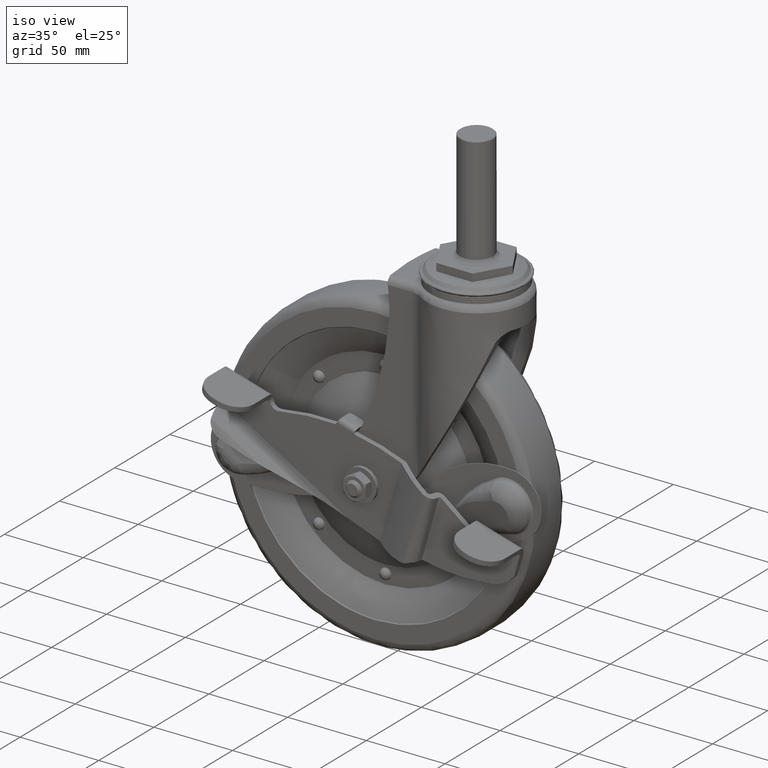
[diagram: clean part render]
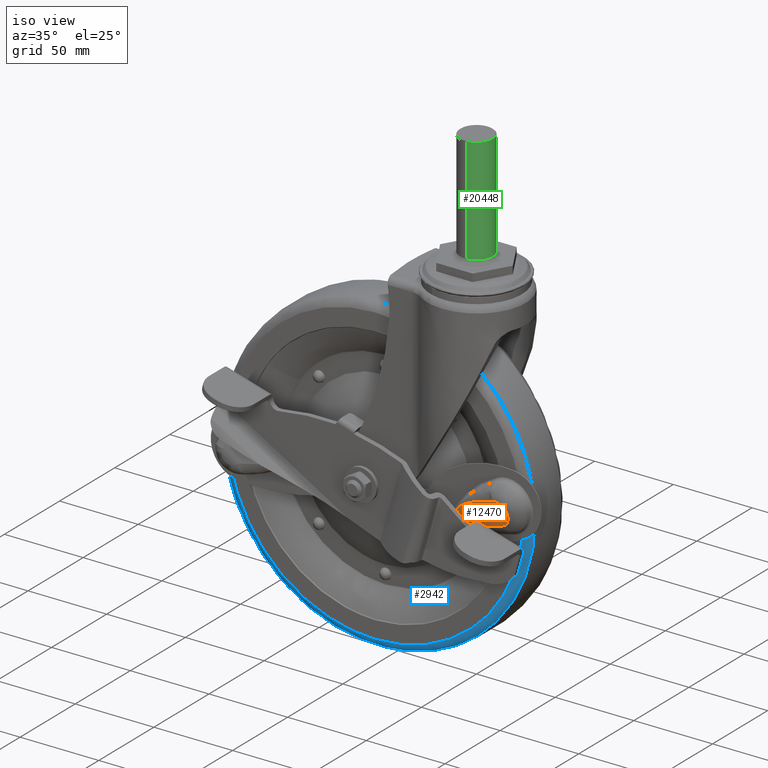
[diagram: same view with three faces highlighted in distinct colors, each labeled with its STEP entity id]
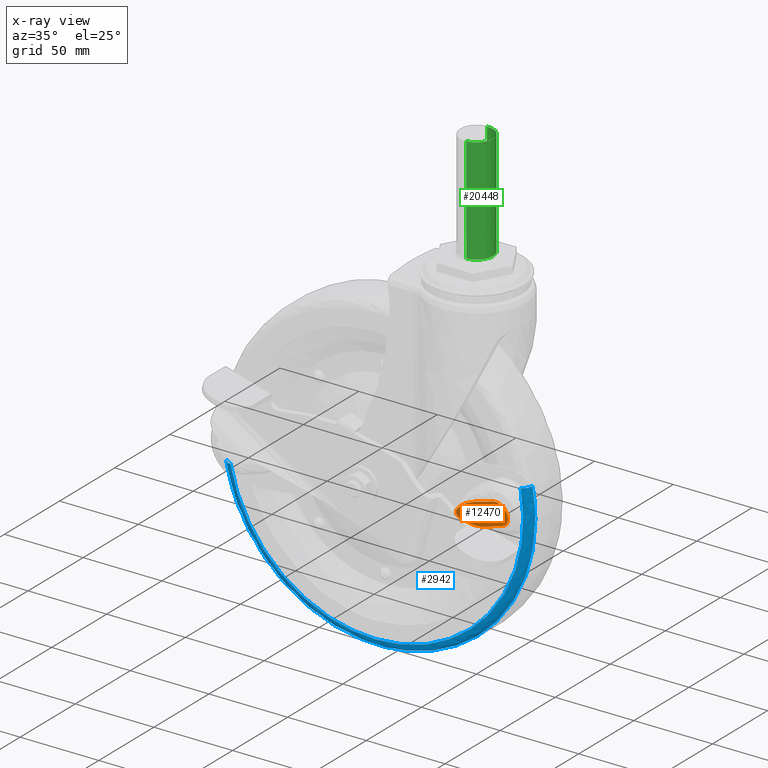
[diagram: x-ray of the same camera — body ghosted, the three highlighted faces saturated]
A machine part, iso view with three faces highlighted in distinct colors.
The next image is the same camera in x-ray (body ghosted, the three faces saturated) — at least one of them is partly hidden behind the body in this view.
Their STEP definitions:

[orange] entity #12470 — the highlighted face is a freeform B-spline surface patch.
#10917=CARTESIAN_POINT('',(2.353505339647175,-21.737326470345302,-132.923790587767600));
#10918=VERTEX_POINT('',#10917);
#10951=CARTESIAN_POINT('',(1.800020573842940,-21.323748464359301,-134.626910777066800));
#10952=VERTEX_POINT('',#10951);
#10966=CARTESIAN_POINT('',(2.353505339647502,-21.737326470345320,-132.923790587767800));
#10967=CARTESIAN_POINT('',(1.777110833418214,-21.512069273756961,-133.678563008669700));
#10968=CARTESIAN_POINT('',(1.800020573842931,-21.323748464359291,-134.626910777066800));
#10976=(BOUNDED_CURVE()B_SPLINE_CURVE(2,(#10966,#10967,#10968),.UNSPECIFIED.,.F.,.U.)CURVE()GEOMETRIC_REPRESENTATION_ITEM()QUASI_UNIFORM_CURVE()RATIONAL_B_SPLINE_CURVE((1.0,0.943017260932655,1.0))REPRESENTATION_ITEM(''));
#10977=EDGE_CURVE('',#10918,#10952,#10976,.T.);
#11062=CARTESIAN_POINT('',(35.307645646096802,-26.189074081966051,-131.562855566195400));
#11063=VERTEX_POINT('',#11062);
#11073=CARTESIAN_POINT('',(32.549695681099898,-25.603090698592801,-132.735144879743390));
#11074=VERTEX_POINT('',#11073);
#11075=CARTESIAN_POINT('',(32.549695681099898,-25.603090698592801,-132.735144879743390));
#11076=CARTESIAN_POINT('',(35.307645646096560,-26.189074081965980,-131.562855566195790));
#11077=QUASI_UNIFORM_CURVE('',1,(#11075,#11076),.UNSPECIFIED.,.F.,.U.);
#11078=EDGE_CURVE('',#11074,#11063,#11077,.T.);
#11215=CARTESIAN_POINT('',(29.993801430335900,-28.184990144374851,-118.323873911160400));
#11216=VERTEX_POINT('',#11215);
#11261=CARTESIAN_POINT('',(29.993801430335900,-28.184990144374851,-118.323873911160400));
#11262=CARTESIAN_POINT('',(29.070042899657469,-27.993508690238549,-118.692769332053900));
#11263=CARTESIAN_POINT('',(27.725378553939461,-27.724126109452900,-119.183398091574110));
#11264=CARTESIAN_POINT('',(26.163446123107331,-27.419037355042100,-119.714519123572800));
#11265=CARTESIAN_POINT('',(25.334774039476589,-27.259314299547249,-119.985690593347100));
#11266=CARTESIAN_POINT('',(24.674608185453469,-27.131618406447920,-120.203960881816500));
#11267=CARTESIAN_POINT('',(23.973824641162281,-26.996742921145131,-120.432302669676700));
#11268=CARTESIAN_POINT('',(22.987362507519681,-26.806436460053661,-120.755952022987700));
#11269=CARTESIAN_POINT('',(22.246433802949710,-26.664174828143221,-120.995686740143700));
#11270=CARTESIAN_POINT('',(21.004777948922790,-26.423894202676369,-121.406745960633500));
#11271=CARTESIAN_POINT('',(19.272570109305502,-26.087426462894690,-121.986441446702600));
#11272=CARTESIAN_POINT('',(17.404254028953630,-25.711637303188319,-122.675579894149490));
#11273=CARTESIAN_POINT('',(16.212098613015051,-25.463895757447968,-123.154758958069100));
#11274=CARTESIAN_POINT('',(15.905859484682869,-25.399496531052691,-123.281617587659000));
#11275=CARTESIAN_POINT('',(15.446217803720860,-25.302914525475028,-123.471644144722900));
#11276=CARTESIAN_POINT('',(14.989677714426220,-25.205370949923928,-123.668389275463400));
#11277=CARTESIAN_POINT('',(14.535627505775080,-25.107078890102368,-123.870411662509400));
#11278=CARTESIAN_POINT('',(14.309888828472760,-25.057584872955609,-123.973957358158300));
#11279=CARTESIAN_POINT('',(14.083488614994099,-25.008259308240930,-124.076251764702500));
#11280=CARTESIAN_POINT('',(12.882667011481731,-24.743390481785401,-124.634922668483600));
#11281=CARTESIAN_POINT('',(10.455210008617399,-24.183217718710239,-125.886974346751700));
#11282=CARTESIAN_POINT('',(7.276965910845660,-23.359095898312450,-127.976051595942910));
#11283=CARTESIAN_POINT('',(4.473892941191450,-22.513245941483021,-130.408738818105890));
#11284=CARTESIAN_POINT('',(3.001590331967736,-21.990630611487830,-132.074992579321900));
#11285=CARTESIAN_POINT('',(2.353505339647175,-21.737326470345302,-132.923790587767600));
#11286=B_SPLINE_CURVE_WITH_KNOTS('',3,(#11261,#11262,#11263,#11264,#11265,#11266,#11267,#11268,#11269,#11270,#11271,#11272,#11273,#11274,#11275,#11276,#11277,#11278,#11279,#11280,#11281,#11282,#11283,#11284,#11285),.UNSPECIFIED.,.F.,.U.,(4,1,1,1,1,1,1,2,1,1,1,1,1,1,1,1,1,1,1,1,1,4),(-0.000158164244176,3.038506764239994,4.368517416284625,5.033127550407869,5.697737684531134,6.489369001846498,7.281000319161898,8.864262953792672,11.270511581378010,14.436163284651199,14.942601028332170,15.195900898573990,15.449200768815800,16.462607470681188,16.715651151045360,16.968983857335260,17.222316563625139,17.475485973941581,21.021110423520781,25.580121437032020,29.125694933040570,32.418070639385988),.UNSPECIFIED.);
#11287=EDGE_CURVE('',#11216,#10918,#11286,.T.);
#11568=CARTESIAN_POINT('',(35.307645646096802,-26.189074081966051,-131.562855566195400));
#11569=CARTESIAN_POINT('',(36.165798584583086,-26.368828696782920,-131.210874203126310));
#11570=CARTESIAN_POINT('',(37.535799407327573,-26.725782889462380,-130.301876608945490));
#11571=CARTESIAN_POINT('',(38.869225140643877,-27.248713941813460,-128.546751536976390));
#11572=CARTESIAN_POINT('',(39.653936731333573,-27.737346855408070,-126.616770851040500));
#11573=CARTESIAN_POINT('',(39.836910759392993,-28.136453586159561,-124.752495372559810));
#11574=CARTESIAN_POINT('',(39.559341220035932,-28.426279632543380,-123.140656443557900));
#11575=CARTESIAN_POINT('',(39.127493129372453,-28.616268066566381,-121.926957537455190));
#11576=CARTESIAN_POINT('',(38.373722226808802,-28.789838697225431,-120.592301828137290));
#11577=CARTESIAN_POINT('',(37.220661271026579,-28.887131750333211,-119.384916578638300));
#11578=CARTESIAN_POINT('',(35.811013060183200,-28.885946103740419,-118.504615250946800));
#11579=CARTESIAN_POINT('',(34.478988087722300,-28.817823247032958,-118.005075966771400));
#11580=CARTESIAN_POINT('',(33.079000198158361,-28.685812096873359,-117.779654779575590));
#11581=CARTESIAN_POINT('',(31.551362353401888,-28.480379717280989,-117.838106175808410));
#11582=CARTESIAN_POINT('',(30.531898756958519,-28.296638493269359,-118.108449827219300));
#11583=CARTESIAN_POINT('',(29.993801430335900,-28.184990144374851,-118.323873911160400));
#11584=B_SPLINE_CURVE_WITH_KNOTS('',3,(#11568,#11569,#11570,#11571,#11572,#11573,#11574,#11575,#11576,#11577,#11578,#11579,#11580,#11581,#11582,#11583),.UNSPECIFIED.,.F.,.U.,(4,1,1,1,1,1,1,1,1,1,1,1,1,4),(0.000030244684933,2.833603788058074,4.959014997923312,6.730120293927097,9.209776382988231,10.626645612980891,11.688919679722011,13.105832522618110,15.231166463400770,16.648094892989850,18.064991444005159,19.481833174323899,20.898776833790940,22.669729720486949),.UNSPECIFIED.);
#11585=EDGE_CURVE('',#11063,#11216,#11584,.T.);
#12398=CARTESIAN_POINT('',(-0.096005003651374,-24.849086314055310,-115.951644557737590));
#12399=CARTESIAN_POINT('',(-0.096005003651374,-20.161584714982450,-139.198522391285990));
#12400=CARTESIAN_POINT('',(41.637287127125987,-29.932588043936729,-116.976682098620700));
#12401=CARTESIAN_POINT('',(41.637287127125987,-25.245086444863880,-140.223559932169000));
#12402=B_SPLINE_SURFACE_WITH_KNOTS('',1,1,((#12398,#12400),(#12399,#12401)),.UNSPECIFIED.,.F.,.F.,.U.,(2,2),(2,2),(0.0,23.714763339515599),(0.0,42.054255003159071),.UNSPECIFIED.);
#12403=ORIENTED_EDGE('',*,*,#10977,.T.);
#12404=CARTESIAN_POINT('',(3.760686841237760,-21.059537116569850,-137.169803821769390));
#12405=VERTEX_POINT('',#12404);
#12406=CARTESIAN_POINT('',(1.800020573842935,-21.323748464359301,-134.626910777066800));
#12407=CARTESIAN_POINT('',(1.803473474900310,-21.295365204233299,-134.769843475192000));
#12408=CARTESIAN_POINT('',(1.817447799077384,-21.268651972474970,-134.911108285172990));
#12409=CARTESIAN_POINT('',(1.866297074264887,-21.218542991710020,-135.190324673901810));
#12410=CARTESIAN_POINT('',(1.901164243197414,-21.195146007481419,-135.328277486288100));
#12411=CARTESIAN_POINT('',(1.970202223961809,-21.162707172182451,-135.532553468440600));
#12412=CARTESIAN_POINT('',(1.996011790364823,-21.152360625041180,-135.600090727002310));
#12413=CARTESIAN_POINT('',(2.052475043099750,-21.132923239240242,-135.731983045157110));
#12414=CARTESIAN_POINT('',(2.083218995245461,-21.123786540437429,-135.796622286424590));
#12415=CARTESIAN_POINT('',(2.183021772024071,-21.098130289406370,-135.986601599564810));
#12416=CARTESIAN_POINT('',(2.259598177560042,-21.083352226180939,-136.108031008077400));
#12417=CARTESIAN_POINT('',(2.390549439008814,-21.064911693105799,-136.281806805845090));
#12418=CARTESIAN_POINT('',(2.436707340492369,-21.059424350267459,-136.338037723208600));
#12419=CARTESIAN_POINT('',(2.532817820619664,-21.049903184292830,-136.445676610742710));
#12420=CARTESIAN_POINT('',(2.582936153847727,-21.045845060643710,-136.497309297554690));
#12421=CARTESIAN_POINT('',(2.739461975132060,-21.035771783012020,-136.645666651402110));
#12422=CARTESIAN_POINT('',(2.851999517140771,-21.031843841433059,-136.735893823149010));
#12423=CARTESIAN_POINT('',(3.033712746464127,-21.030346584645748,-136.857554011467900));
#12424=CARTESIAN_POINT('',(3.095871243720040,-21.030592107543900,-136.895412585506110));
#12425=CARTESIAN_POINT('',(3.222325956356320,-21.032528443805798,-136.965305943562700));
#12426=CARTESIAN_POINT('',(3.286771859747690,-21.034217933516292,-136.997441394021990));
#12427=CARTESIAN_POINT('',(3.483703066613164,-21.041413580798249,-137.085557429183610));
#12428=CARTESIAN_POINT('',(3.619759586461200,-21.049033727638339,-137.133299099101690));
#12429=CARTESIAN_POINT('',(3.760686841237881,-21.059537116569850,-137.169803821769790));
#12430=B_SPLINE_CURVE_WITH_KNOTS('',3,(#12406,#12407,#12408,#12409,#12410,#12411,#12412,#12413,#12414,#12415,#12416,#12417,#12418,#12419,#12420,#12421,#12422,#12423,#12424,#12425,#12426,#12427,#12428,#12429),.UNSPECIFIED.,.F.,.U.,(4,2,2,2,2,2,2,2,2,2,2,4),(0.0,0.124999999999976,0.249999999999952,0.312499999999952,0.374999999999951,0.499999999999971,0.562499999999981,0.624999999999991,0.749999999999994,0.812499999999996,0.874999999999997,1.0),.UNSPECIFIED.);
#12431=EDGE_CURVE('',#10952,#12405,#12430,.T.);
#12432=ORIENTED_EDGE('',*,*,#12431,.T.);
#12433=CARTESIAN_POINT('',(7.062986215485291,-21.323748464359301,-137.935496511440390));
#12434=VERTEX_POINT('',#12433);
#12435=CARTESIAN_POINT('',(3.760686841237981,-21.059537116569899,-137.169803821769590));
#12436=CARTESIAN_POINT('',(5.382420731576909,-21.180408616939172,-137.589871799870990));
#12437=CARTESIAN_POINT('',(7.062986215485401,-21.323748464359461,-137.935496511439910));
#12438=QUASI_UNIFORM_CURVE('',2,(#12435,#12436,#12437),.UNSPECIFIED.,.F.,.U.);
#12439=EDGE_CURVE('',#12405,#12434,#12438,.T.);
#12440=ORIENTED_EDGE('',*,*,#12439,.T.);
#12441=CARTESIAN_POINT('',(19.635861106084949,-23.004543245278501,-137.503868028765000));
#12442=VERTEX_POINT('',#12441);
#12443=CARTESIAN_POINT('',(7.062986215485291,-21.323748464359301,-137.935496511440390));
#12444=CARTESIAN_POINT('',(12.807881989738490,-21.813722234742350,-139.117106954197710));
#12445=CARTESIAN_POINT('',(19.635861106084949,-23.004543245278501,-137.503868028765000));
#12446=QUASI_UNIFORM_CURVE('',2,(#12443,#12444,#12445),.UNSPECIFIED.,.F.,.U.);
#12447=EDGE_CURVE('',#12434,#12442,#12446,.T.);
#12448=ORIENTED_EDGE('',*,*,#12447,.T.);
#12449=CARTESIAN_POINT('',(19.635861106084949,-23.004543245278501,-137.503868028765000));
#12450=CARTESIAN_POINT('',(21.247948066865160,-23.286275891610391,-137.120107555266090));
#12451=CARTESIAN_POINT('',(22.969645462960390,-23.610506733603231,-136.594491475970300));
#12452=CARTESIAN_POINT('',(24.729190766758311,-23.959549865092949,-135.969616257421590));
#12453=CARTESIAN_POINT('',(24.998980961403579,-24.013623611111811,-135.871051338427210));
#12454=CARTESIAN_POINT('',(25.269158530597650,-24.067530928263569,-135.773555320137800));
#12455=CARTESIAN_POINT('',(25.537875391212228,-24.121999849007739,-135.672355842381990));
#12456=CARTESIAN_POINT('',(25.874034347675419,-24.189995995852779,-135.546468116416410));
#12457=CARTESIAN_POINT('',(26.946358701049650,-24.408896238906831,-135.134990347794400));
#12458=CARTESIAN_POINT('',(28.406239489814670,-24.715005499804779,-134.534653086249700));
#12459=CARTESIAN_POINT('',(30.514120757832099,-25.165091170178581,-133.627657231796210));
#12460=CARTESIAN_POINT('',(31.762631310456229,-25.433293556347341,-133.082433958519490));
#12461=CARTESIAN_POINT('',(32.549695681099898,-25.603090698592801,-132.735144879743390));
#12462=B_SPLINE_CURVE_WITH_KNOTS('',3,(#12449,#12450,#12451,#12452,#12453,#12454,#12455,#12456,#12457,#12458,#12459,#12460,#12461),.UNSPECIFIED.,.F.,.U.,(4,1,1,1,1,1,1,1,1,1,4),(0.000046644541202,5.041909863143722,5.480252921362451,5.699438297996068,5.918623674629685,6.356975047245300,6.576208283634007,7.014667179670217,9.864524397597290,11.399422795555390,14.030049253693990),.UNSPECIFIED.);
#12463=EDGE_CURVE('',#12442,#11074,#12462,.T.);
#12464=ORIENTED_EDGE('',*,*,#12463,.T.);
#12465=ORIENTED_EDGE('',*,*,#11078,.T.);
#12466=ORIENTED_EDGE('',*,*,#11585,.T.);
#12467=ORIENTED_EDGE('',*,*,#11287,.T.);
#12468=EDGE_LOOP('',(#12403,#12432,#12440,#12448,#12464,#12465,#12466,#12467));
#12469=FACE_OUTER_BOUND('',#12468,.T.);
#12470=ADVANCED_FACE('',(#12469),#12402,.T.);

[blue] entity #2942 — the highlighted face is a freeform B-spline surface patch.
#2735=CARTESIAN_POINT('',(-53.0,-11.999999999997080,-229.186050829821910));
#2736=VERTEX_POINT('',#2735);
#2750=CARTESIAN_POINT('',(-150.037965775266710,-12.000006115932941,-148.909192650666400));
#2751=VERTEX_POINT('',#2750);
#2752=CARTESIAN_POINT('',(-150.037965775266680,-12.000006115932948,-148.909192650666400));
#2753=CARTESIAN_POINT('',(-134.724408148913140,-12.000003057965609,-229.186050712853840));
#2754=CARTESIAN_POINT('',(-53.0,-11.999999999997080,-229.186050829821910));
#2762=(BOUNDED_CURVE()B_SPLINE_CURVE(2,(#2752,#2753,#2754),.UNSPECIFIED.,.F.,.U.)B_SPLINE_CURVE_WITH_KNOTS((3,3),(0.782161224481905,1.0),.UNSPECIFIED.)CURVE()GEOMETRIC_REPRESENTATION_ITEM()RATIONAL_B_SPLINE_CURVE((0.934336041892530,0.744785999424496,1.0))REPRESENTATION_ITEM(''));
#2763=EDGE_CURVE('',#2751,#2736,#2762,.T.);
#2813=CARTESIAN_POINT('',(44.037965775266741,-12.000006115932390,-111.887401355383700));
#2814=VERTEX_POINT('',#2813);
#2828=CARTESIAN_POINT('',(-53.0,-11.999999999997080,-229.186050829821910));
#2829=CARTESIAN_POINT('',(45.787753319537018,-12.000002529770864,-229.186050926586430));
#2830=CARTESIAN_POINT('',(45.787752706366533,-12.000005587737920,-130.398297216757190));
#2831=CARTESIAN_POINT('',(45.787752648405117,-12.000005876799593,-121.060147889070580));
#2832=CARTESIAN_POINT('',(44.037965775266741,-12.000006115932392,-111.887401355383740));
#2840=(BOUNDED_CURVE()B_SPLINE_CURVE(2,(#2828,#2829,#2830,#2831,#2832),.UNSPECIFIED.,.F.,.U.)B_SPLINE_CURVE_WITH_KNOTS((3,2,3),(0.0,0.250000000000000,0.282161224481904),.UNSPECIFIED.)CURVE()GEOMETRIC_REPRESENTATION_ITEM()RATIONAL_B_SPLINE_CURVE((1.0,0.707106781186548,1.0,0.962320781762053,0.934336041892531))REPRESENTATION_ITEM(''));
#2841=EDGE_CURVE('',#2736,#2814,#2840,.T.);
#2849=CARTESIAN_POINT('',(-150.607681702444350,-11.692248870521274,-146.204784005111460));
#2850=CARTESIAN_POINT('',(-150.350289900853450,-11.692248870521281,-147.554079081324010));
#2851=CARTESIAN_POINT('',(-131.568996860126160,-11.692248870521277,-246.009065091500080));
#2852=CARTESIAN_POINT('',(-34.479114385825554,-11.692248870521276,-227.488179477325640));
#2853=CARTESIAN_POINT('',(62.610768088475020,-11.692248870521277,-208.967293863151180));
#2854=CARTESIAN_POINT('',(43.829482904410050,-11.692248870521274,-110.512349039041340));
#2855=CARTESIAN_POINT('',(43.572098778044335,-11.692248870521283,-109.163094197767800));
#2856=CARTESIAN_POINT('',(-149.974423937981040,-16.279335901503089,-146.102234897824250));
#2857=CARTESIAN_POINT('',(-149.718702039352990,-16.279335901503089,-147.442776036143130));
#2858=CARTESIAN_POINT('',(-131.059258011298340,-16.279335901503085,-245.259007152712340));
#2859=CARTESIAN_POINT('',(-34.599273930805495,-16.279335901503092,-226.858281083517910));
#2860=CARTESIAN_POINT('',(61.860710149687293,-16.279335901503085,-208.457555014323360));
#2861=CARTESIAN_POINT('',(43.201273927322511,-16.279335901503089,-110.641364816614000));
#2862=CARTESIAN_POINT('',(42.945559654124374,-16.279335901503085,-109.300863652198420));
#2863=CARTESIAN_POINT('',(-145.409424686493940,-15.990251605443879,-145.362983641420700));
#2864=CARTESIAN_POINT('',(-145.165740707024580,-15.990251605443886,-146.640419797575160));
#2865=CARTESIAN_POINT('',(-127.384676199694920,-15.990251605443891,-239.852024212613230));
#2866=CARTESIAN_POINT('',(-35.465474495053385,-15.990251605443882,-222.317498707666570));
#2867=CARTESIAN_POINT('',(56.453727209588131,-15.990251605443891,-204.782973202719970));
#2868=CARTESIAN_POINT('',(38.672670140501374,-15.990251605443877,-111.571407780316800));
#2869=CARTESIAN_POINT('',(38.428993427500451,-15.990251605443884,-110.294009716323710));
#2877=(BOUNDED_SURFACE()B_SPLINE_SURFACE(2,2,((#2849,#2856,#2863),(#2850,#2857,#2864),(#2851,#2858,#2865),(#2852,#2859,#2866),(#2853,#2860,#2867),(#2854,#2861,#2868),(#2855,#2862,#2869)),.UNSPECIFIED.,.F.,.F.,.U.)B_SPLINE_SURFACE_WITH_KNOTS((3,1,2,1,3),(3,3),(0.0,3.275390472720527,167.039894431137410,330.804398389554190,334.079689462724220),(0.0,7.841791719998358),.UNSPECIFIED.)GEOMETRIC_REPRESENTATION_ITEM()RATIONAL_B_SPLINE_SURFACE(((0.929521537297411,0.681944689906696,0.929626846512967),(0.924139416695533,0.677996090097422,0.924244116149103),(0.649659514332440,0.476623551224524,0.649733116859211),(0.918757296093655,0.674047490288149,0.918861385785239),(0.649659514332440,0.476623551224524,0.649733116859211),(0.924139253362223,0.677995970267726,0.924243952797288),(0.929521210630790,0.681944450247303,0.929626519809337)))REPRESENTATION_ITEM('')SURFACE());
#2878=ORIENTED_EDGE('',*,*,#2763,.T.);
#2879=ORIENTED_EDGE('',*,*,#2841,.T.);
#2880=CARTESIAN_POINT('',(39.225746669333653,-15.999999999999980,-112.805294918619690));
#2881=VERTEX_POINT('',#2880);
#2882=CARTESIAN_POINT('',(44.037965775266734,-12.000006115932386,-111.887401355383720));
#2883=CARTESIAN_POINT('',(43.235919873489465,-15.999999461860121,-112.040356630529360));
#2884=CARTESIAN_POINT('',(39.225746669333645,-15.999999999999984,-112.805294918619680));
#2892=(BOUNDED_CURVE()B_SPLINE_CURVE(2,(#2882,#2883,#2884),.UNSPECIFIED.,.F.,.U.)B_SPLINE_CURVE_WITH_KNOTS((3,3),(-1.704762242939153,-0.294906604040968),.UNSPECIFIED.)CURVE()GEOMETRIC_REPRESENTATION_ITEM()RATIONAL_B_SPLINE_CURVE((0.897540346245958,0.695268963533632,0.897635389333030))REPRESENTATION_ITEM(''));
#2893=EDGE_CURVE('',#2814,#2881,#2892,.T.);
#2894=ORIENTED_EDGE('',*,*,#2893,.T.);
#2895=CARTESIAN_POINT('',(-53.0,-15.999999999999959,-224.287072003025090));
#2896=VERTEX_POINT('',#2895);
#2897=CARTESIAN_POINT('',(-53.0,-15.999999999999959,-224.287072003025090));
#2898=CARTESIAN_POINT('',(40.888775000124156,-15.999999999999970,-224.287072003001330));
#2899=CARTESIAN_POINT('',(40.888775000274201,-15.999999999999980,-130.398297002972810));
#2900=CARTESIAN_POINT('',(40.888775000288383,-15.999999999999979,-121.523194730137940));
#2901=CARTESIAN_POINT('',(39.225746669333660,-15.999999999999982,-112.805294918619640));
#2909=(BOUNDED_CURVE()B_SPLINE_CURVE(2,(#2897,#2898,#2899,#2900,#2901),.UNSPECIFIED.,.F.,.U.)B_SPLINE_CURVE_WITH_KNOTS((3,2,3),(0.0,0.250000000000000,0.282161366259548),.UNSPECIFIED.)CURVE()GEOMETRIC_REPRESENTATION_ITEM()RATIONAL_B_SPLINE_CURVE((1.0,0.707106781186548,1.0,0.962320615659211,0.934335795160169))REPRESENTATION_ITEM(''));
#2910=EDGE_CURVE('',#2896,#2881,#2909,.T.);
#2911=ORIENTED_EDGE('',*,*,#2910,.F.);
#2912=CARTESIAN_POINT('',(-145.225746669333690,-15.999999999999980,-147.991299087430410));
#2913=VERTEX_POINT('',#2912);
#2914=CARTESIAN_POINT('',(-145.225746669333690,-15.999999999999982,-147.991299087430380));
#2915=CARTESIAN_POINT('',(-130.671549599367860,-15.999999999999973,-224.287072003053740));
#2916=CARTESIAN_POINT('',(-53.0,-15.999999999999959,-224.287072003025090));
#2924=(BOUNDED_CURVE()B_SPLINE_CURVE(2,(#2914,#2915,#2916),.UNSPECIFIED.,.F.,.U.)B_SPLINE_CURVE_WITH_KNOTS((3,3),(0.782161366259548,1.0),.UNSPECIFIED.)CURVE()GEOMETRIC_REPRESENTATION_ITEM()RATIONAL_B_SPLINE_CURVE((0.934335795160169,0.744786165527337,1.0))REPRESENTATION_ITEM(''));
#2925=EDGE_CURVE('',#2913,#2896,#2924,.T.);
#2926=ORIENTED_EDGE('',*,*,#2925,.F.);
#2927=CARTESIAN_POINT('',(-150.037965775266660,-12.000006115932941,-148.909192650666400));
#2928=CARTESIAN_POINT('',(-149.235919873489020,-15.999999461860121,-148.756237375520640));
#2929=CARTESIAN_POINT('',(-145.225746669333690,-15.999999999999982,-147.991299087430350));
#2937=(BOUNDED_CURVE()B_SPLINE_CURVE(2,(#2927,#2928,#2929),.UNSPECIFIED.,.F.,.U.)B_SPLINE_CURVE_WITH_KNOTS((3,3),(-1.704762242939028,-0.294906604040970),.UNSPECIFIED.)CURVE()GEOMETRIC_REPRESENTATION_ITEM()RATIONAL_B_SPLINE_CURVE((0.897540346245922,0.695268963533650,0.897635389333029))REPRESENTATION_ITEM(''));
#2938=EDGE_CURVE('',#2751,#2913,#2937,.T.);
#2939=ORIENTED_EDGE('',*,*,#2938,.F.);
#2940=EDGE_LOOP('',(#2878,#2879,#2894,#2911,#2926,#2939));
#2941=FACE_OUTER_BOUND('',#2940,.T.);
#2942=ADVANCED_FACE('',(#2941),#2877,.T.);

[green] entity #20448 — the highlighted face is a freeform B-spline surface patch.
#20232=CARTESIAN_POINT('',(-0.641009665846992,10.480415383480450,74.101590998648646));
#20233=VERTEX_POINT('',#20232);
#20234=CARTESIAN_POINT('',(10.500000000000000,0.0,74.101590998744015));
#20235=VERTEX_POINT('',#20234);
#20236=CARTESIAN_POINT('',(-0.641009665846992,10.480415383480455,74.101590998648646));
#20237=CARTESIAN_POINT('',(-0.320804015004525,10.500000000093832,74.101590998650025));
#20238=CARTESIAN_POINT('',(-5.649943E-012,10.500000000092379,74.101590998651474));
#20239=CARTESIAN_POINT('',(10.499999999997263,10.500000000044780,74.101590998699166));
#20240=CARTESIAN_POINT('',(10.500000000000000,0.0,74.101590998744015));
#20248=(BOUNDED_CURVE()B_SPLINE_CURVE(2,(#20236,#20237,#20238,#20239,#20240),.UNSPECIFIED.,.F.,.U.)B_SPLINE_CURVE_WITH_KNOTS((3,2,3),(0.239332962230029,0.250000000000000,0.500000000000000),.UNSPECIFIED.)CURVE()GEOMETRIC_REPRESENTATION_ITEM()RATIONAL_B_SPLINE_CURVE((0.976072041647614,0.987502787889394,1.0,0.707106781186547,1.0))REPRESENTATION_ITEM(''));
#20249=EDGE_CURVE('',#20233,#20235,#20248,.T.);
#20265=CARTESIAN_POINT('',(0.823820505303639,-10.467632004232531,74.101590998649527));
#20266=VERTEX_POINT('',#20265);
#20280=CARTESIAN_POINT('',(10.500000000000000,0.0,74.101590998744015));
#20281=CARTESIAN_POINT('',(10.500000000001009,-9.706100162286329,74.101590998697148));
#20282=CARTESIAN_POINT('',(0.823820505303639,-10.467632004232527,74.101590998649527));
#20290=(BOUNDED_CURVE()B_SPLINE_CURVE(2,(#20280,#20281,#20282),.UNSPECIFIED.,.F.,.U.)B_SPLINE_CURVE_WITH_KNOTS((3,3),(0.500000000000000,0.736331300630160),.UNSPECIFIED.)CURVE()GEOMETRIC_REPRESENTATION_ITEM()RATIONAL_B_SPLINE_CURVE((1.0,0.723120658608251,0.969723356166375))REPRESENTATION_ITEM(''));
#20291=EDGE_CURVE('',#20235,#20266,#20290,.T.);
#20316=CARTESIAN_POINT('',(-0.823820505303638,10.467632004232531,74.101590998649527));
#20317=VERTEX_POINT('',#20316);
#20350=CARTESIAN_POINT('',(-0.823820505303638,10.467632004232529,74.101590998649527));
#20351=CARTESIAN_POINT('',(-0.732470865005241,10.474821376867377,74.101590998649087));
#20352=CARTESIAN_POINT('',(-0.641009665846992,10.480415383480455,74.101590998648646));
#20360=(BOUNDED_CURVE()B_SPLINE_CURVE(2,(#20350,#20351,#20352),.UNSPECIFIED.,.F.,.U.)B_SPLINE_CURVE_WITH_KNOTS((3,3),(0.236331300630160,0.239332962230029),.UNSPECIFIED.)CURVE()GEOMETRIC_REPRESENTATION_ITEM()RATIONAL_B_SPLINE_CURVE((0.969723356166374,0.972855475550099,0.976072041647614))REPRESENTATION_ITEM(''));
#20361=EDGE_CURVE('',#20317,#20233,#20360,.T.);
#20366=CARTESIAN_POINT('',(-0.823820505142371,10.467632004197840,75.786587773766698));
#20367=CARTESIAN_POINT('',(9.643811499055470,11.291452509340210,75.786587773766698));
#20368=CARTESIAN_POINT('',(10.467632004197840,0.823820505142371,75.786587773766698));
#20369=CARTESIAN_POINT('',(11.291452509340210,-9.643811499055470,75.786587773766698));
#20370=CARTESIAN_POINT('',(0.823820505142371,-10.467632004197840,75.786587773766698));
#20371=CARTESIAN_POINT('',(-0.823820505142371,10.467632004197840,4.974598303439350));
#20372=CARTESIAN_POINT('',(9.643811499055470,11.291452509340210,4.974598303439351));
#20373=CARTESIAN_POINT('',(10.467632004197840,0.823820505142371,4.974598303439350));
#20374=CARTESIAN_POINT('',(11.291452509340210,-9.643811499055470,4.974598303439351));
#20375=CARTESIAN_POINT('',(0.823820505142371,-10.467632004197840,4.974598303439350));
#20383=(BOUNDED_SURFACE()B_SPLINE_SURFACE(2,1,((#20366,#20371),(#20367,#20372),(#20368,#20373),(#20369,#20374),(#20370,#20375)),.UNSPECIFIED.,.F.,.F.,.U.)B_SPLINE_SURFACE_WITH_KNOTS((3,2,3),(2,2),(0.0,17.396969619669989,34.793939239339970),(0.0,70.811989470327347),.UNSPECIFIED.)GEOMETRIC_REPRESENTATION_ITEM()RATIONAL_B_SPLINE_SURFACE(((1.0,1.0),(0.707106781186548,0.707106781186548),(1.0,1.0),(0.707106781186548,0.707106781186548),(1.0,1.0)))REPRESENTATION_ITEM('')SURFACE());
#20384=ORIENTED_EDGE('',*,*,#20361,.T.);
#20385=ORIENTED_EDGE('',*,*,#20249,.T.);
#20386=ORIENTED_EDGE('',*,*,#20291,.T.);
#20387=CARTESIAN_POINT('',(0.823814040764087,-10.467632512951431,6.701719998320665));
#20388=VERTEX_POINT('',#20387);
#20389=CARTESIAN_POINT('',(0.823820505303639,-10.467632004232531,74.101590998649527));
#20390=CARTESIAN_POINT('',(0.823814040764087,-10.467632512951431,6.701719998320665));
#20391=QUASI_UNIFORM_CURVE('',1,(#20389,#20390),.UNSPECIFIED.,.F.,.U.);
#20392=EDGE_CURVE('',#20266,#20388,#20391,.T.);
#20393=ORIENTED_EDGE('',*,*,#20392,.T.);
#20394=CARTESIAN_POINT('',(10.500000000000000,0.0,6.701719998744011));
#20395=VERTEX_POINT('',#20394);
#20396=CARTESIAN_POINT('',(10.500000000000000,0.0,6.701719998744011));
#20397=CARTESIAN_POINT('',(10.499999999999924,-9.706106175034146,6.701719998738743));
#20398=CARTESIAN_POINT('',(0.823814040764087,-10.467632512951431,6.701719998320665));
#20406=(BOUNDED_CURVE()B_SPLINE_CURVE(2,(#20396,#20397,#20398),.UNSPECIFIED.,.F.,.U.)B_SPLINE_CURVE_WITH_KNOTS((3,3),(0.500000000000000,0.736331406497478),.UNSPECIFIED.)CURVE()GEOMETRIC_REPRESENTATION_ITEM()RATIONAL_B_SPLINE_CURVE((1.0,0.723120534576973,0.969723577103495))REPRESENTATION_ITEM(''));
#20407=EDGE_CURVE('',#20395,#20388,#20406,.T.);
#20408=ORIENTED_EDGE('',*,*,#20407,.F.);
#20409=CARTESIAN_POINT('',(10.496683987454750,0.263866002942459,6.701719997837573));
#20410=VERTEX_POINT('',#20409);
#20411=CARTESIAN_POINT('',(10.496683987454754,0.263866002942460,6.701719997837573));
#20412=CARTESIAN_POINT('',(10.499999999999947,0.131953837689380,6.701719998290791));
#20413=CARTESIAN_POINT('',(10.500000000000000,0.0,6.701719998744011));
#20421=(BOUNDED_CURVE()B_SPLINE_CURVE(2,(#20411,#20412,#20413),.UNSPECIFIED.,.F.,.U.)B_SPLINE_CURVE_WITH_KNOTS((3,3),(0.495579891756681,0.500000000000000),.UNSPECIFIED.)CURVE()GEOMETRIC_REPRESENTATION_ITEM()RATIONAL_B_SPLINE_CURVE((0.989826157651907,0.994821521076442,1.0))REPRESENTATION_ITEM(''));
#20422=EDGE_CURVE('',#20410,#20395,#20421,.T.);
#20423=ORIENTED_EDGE('',*,*,#20422,.F.);
#20424=CARTESIAN_POINT('',(-0.823814040764088,10.467632512951431,6.701719998320669));
#20425=VERTEX_POINT('',#20424);
#20426=CARTESIAN_POINT('',(-0.823814040764088,10.467632512951431,6.701719998320669));
#20427=CARTESIAN_POINT('',(-0.412542876391888,10.499999999998041,6.701719998302901));
#20428=CARTESIAN_POINT('',(9.968874E-014,10.499999999998080,6.701719998285094));
#20429=CARTESIAN_POINT('',(10.239367699128433,10.499999999999076,6.701719997843128));
#20430=CARTESIAN_POINT('',(10.496683987454754,0.263866002942460,6.701719997837573));
#20438=(BOUNDED_CURVE()B_SPLINE_CURVE(2,(#20426,#20427,#20428,#20429,#20430),.UNSPECIFIED.,.F.,.U.)B_SPLINE_CURVE_WITH_KNOTS((3,2,3),(0.236331406497478,0.250000000000000,0.495579891756681),.UNSPECIFIED.)CURVE()GEOMETRIC_REPRESENTATION_ITEM()RATIONAL_B_SPLINE_CURVE((0.969723577103495,0.983986246609574,1.0,0.712285260110105,0.989826157651907))REPRESENTATION_ITEM(''));
#20439=EDGE_CURVE('',#20425,#20410,#20438,.T.);
#20440=ORIENTED_EDGE('',*,*,#20439,.F.);
#20441=CARTESIAN_POINT('',(-0.823820505303638,10.467632004232531,74.101590998649527));
#20442=CARTESIAN_POINT('',(-0.823814040764088,10.467632512951431,6.701719998320669));
#20443=QUASI_UNIFORM_CURVE('',1,(#20441,#20442),.UNSPECIFIED.,.F.,.U.);
#20444=EDGE_CURVE('',#20317,#20425,#20443,.T.);
#20445=ORIENTED_EDGE('',*,*,#20444,.F.);
#20446=EDGE_LOOP('',(#20384,#20385,#20386,#20393,#20408,#20423,#20440,#20445));
#20447=FACE_OUTER_BOUND('',#20446,.T.);
#20448=ADVANCED_FACE('',(#20447),#20383,.T.);